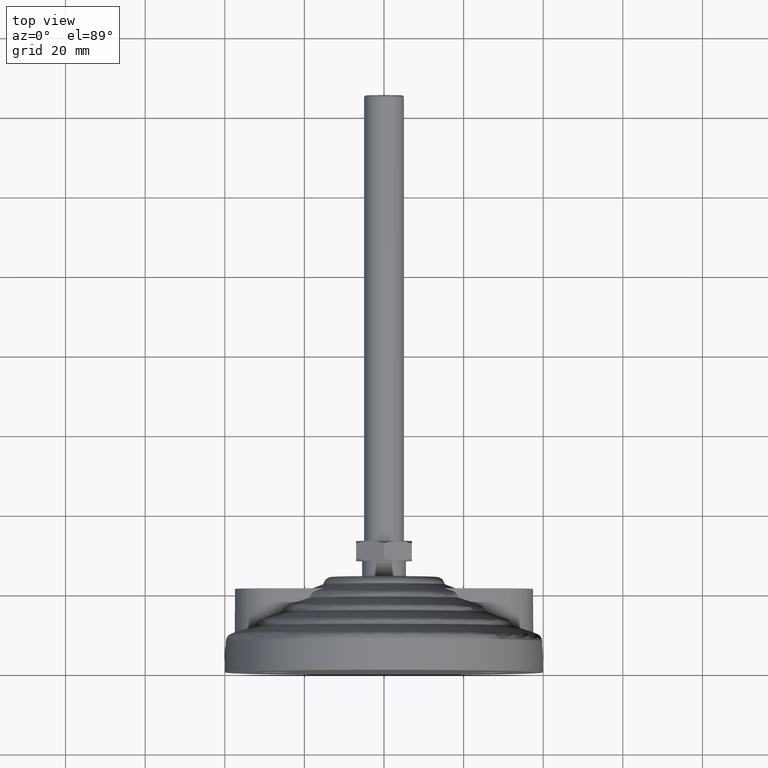
[diagram: clean part render]
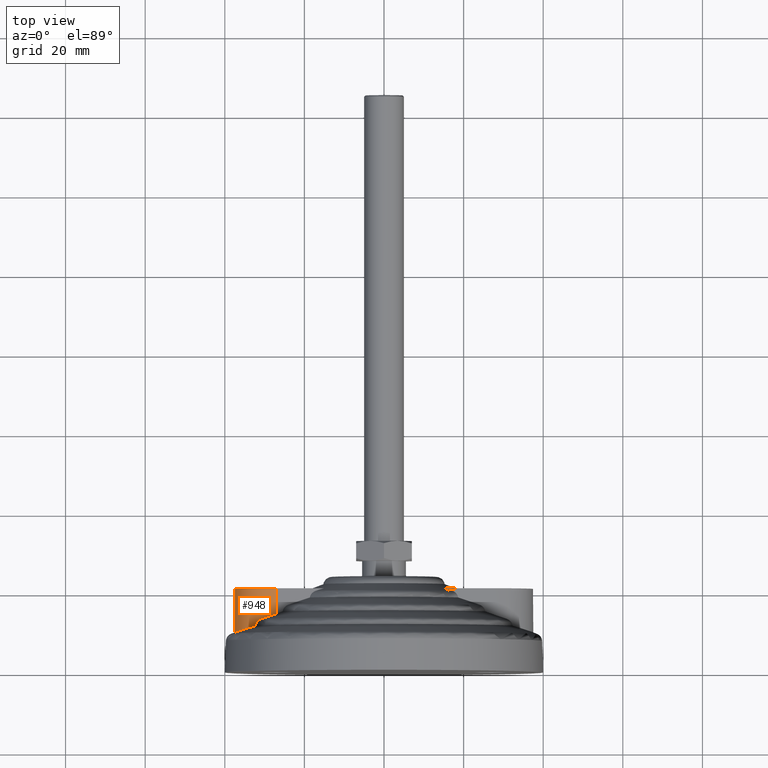
[diagram: same view with one face highlighted and labeled with its STEP entity id]
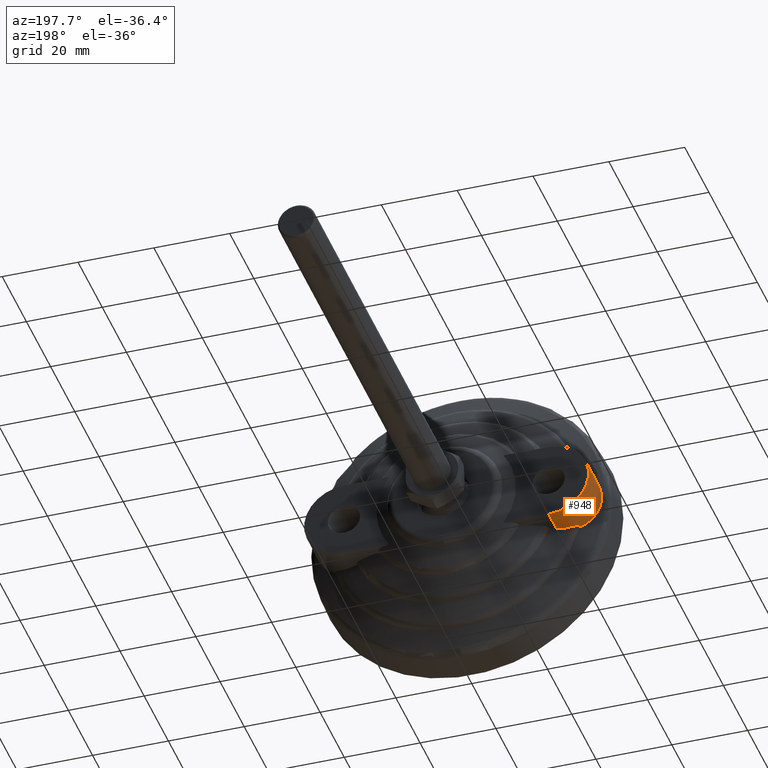
[diagram: same view with one face highlighted and labeled with its STEP entity id]
A machine part, top view. The second image highlights one B-rep face of the part: STEP entity #948.
A second angle (auxiliary view) of the same face is appended — the face is thin or edge-on in the first view.
In plain terms, the highlighted cylindrical surface (partial cylindrical patch) has radius 10.5 mm, axis along (0, 1, 0).
Its self-contained STEP definition (entity closure, byte-faithful):
#129=B_SPLINE_CURVE_WITH_KNOTS('',3,(#1700,#1701,#1702,#1703,#1704,#1705),
 .UNSPECIFIED.,.F.,.F.,(4,2,4),(5.76722868500192,6.05783616383258,6.15239931787654),
 .UNSPECIFIED.);
#130=B_SPLINE_CURVE_WITH_KNOTS('',3,(#1707,#1708,#1709,#1710,#1711,#1712,
#1713,#1714,#1715,#1716),.UNSPECIFIED.,.F.,.F.,(4,2,2,2,4),(-0.277755263623777,
-0.240449563586303,-0.201911387548122,-0.120044959040971,0.),
 .UNSPECIFIED.);
#131=B_SPLINE_CURVE_WITH_KNOTS('',3,(#1718,#1719,#1720,#1721,#1722,#1723,
#1724,#1725,#1726,#1727,#1728,#1729,#1730,#1731,#1732,#1733,#1734,#1735,
#1736,#1737,#1738,#1739),.UNSPECIFIED.,.F.,.F.,(4,2,2,2,2,2,2,2,2,2,4),
(3.43606543224134,3.49650336834101,3.75130165602007,4.00609994369912,4.26089823137818,
4.51569651905723,4.77049480673629,5.02529309441534,5.2800913820944,5.53488966977346,
5.59532760587313),.UNSPECIFIED.);
#132=B_SPLINE_CURVE_WITH_KNOTS('',3,(#1741,#1742,#1743,#1744,#1745,#1746,
#1747,#1748,#1749,#1750),.UNSPECIFIED.,.F.,.F.,(4,2,2,2,4),(-0.258726061847404,
-0.192005591979209,-0.127331546332243,-0.0568854047078998,0.),
 .UNSPECIFIED.);
#133=B_SPLINE_CURVE_WITH_KNOTS('',3,(#1751,#1752,#1753,#1754,#1755,#1756),
 .UNSPECIFIED.,.F.,.F.,(4,2,4),(2.8665167227233,2.96107987676726,3.25168735559793),
 .UNSPECIFIED.);
#147=FACE_OUTER_BOUND('',#203,.T.);
#203=EDGE_LOOP('',(#689,#690,#691,#692,#693,#694,#695,#696));
#263=LINE('',#1625,#286);
#264=LINE('',#1632,#287);
#286=VECTOR('',#1245,10.);
#287=VECTOR('',#1248,10.);
#317=CIRCLE('',#1078,10.5);
#399=VERTEX_POINT('',#1585);
#400=VERTEX_POINT('',#1587);
#405=VERTEX_POINT('',#1621);
#407=VERTEX_POINT('',#1631);
#416=VERTEX_POINT('',#1699);
#417=VERTEX_POINT('',#1706);
#418=VERTEX_POINT('',#1717);
#419=VERTEX_POINT('',#1740);
#506=EDGE_CURVE('',#400,#399,#317,.T.);
#513=EDGE_CURVE('',#405,#399,#263,.T.);
#515=EDGE_CURVE('',#407,#400,#264,.T.);
#526=EDGE_CURVE('',#416,#405,#129,.T.);
#527=EDGE_CURVE('',#417,#416,#130,.T.);
#528=EDGE_CURVE('',#418,#417,#131,.T.);
#529=EDGE_CURVE('',#419,#418,#132,.T.);
#530=EDGE_CURVE('',#407,#419,#133,.T.);
#689=ORIENTED_EDGE('',*,*,#526,.F.);
#690=ORIENTED_EDGE('',*,*,#527,.F.);
#691=ORIENTED_EDGE('',*,*,#528,.F.);
#692=ORIENTED_EDGE('',*,*,#529,.F.);
#693=ORIENTED_EDGE('',*,*,#530,.F.);
#694=ORIENTED_EDGE('',*,*,#515,.T.);
#695=ORIENTED_EDGE('',*,*,#506,.T.);
#696=ORIENTED_EDGE('',*,*,#513,.F.);
#936=CYLINDRICAL_SURFACE('',#1082,10.5);
#948=ADVANCED_FACE('',(#147),#936,.T.);
#1078=AXIS2_PLACEMENT_3D('',#1588,#1240,#1241);
#1082=AXIS2_PLACEMENT_3D('',#1698,#1252,#1253);
#1240=DIRECTION('center_axis',(0.,-1.,0.));
#1241=DIRECTION('ref_axis',(0.,0.,-1.));
#1245=DIRECTION('',(0.,1.,0.));
#1248=DIRECTION('',(0.,1.,0.));
#1252=DIRECTION('center_axis',(0.,1.,0.));
#1253=DIRECTION('ref_axis',(0.,0.,-1.));
#1585=CARTESIAN_POINT('',(-27.,21.,-10.5));
#1587=CARTESIAN_POINT('',(-27.,21.,10.5));
#1588=CARTESIAN_POINT('Origin',(-27.,21.,0.));
#1621=CARTESIAN_POINT('',(-27.,14.6225422536565,-10.5));
#1625=CARTESIAN_POINT('',(-27.,1.,-10.5));
#1631=CARTESIAN_POINT('',(-27.,14.6225422536565,10.5));
#1632=CARTESIAN_POINT('',(-27.,1.,10.5));
#1698=CARTESIAN_POINT('Origin',(-27.,1.,0.));
#1699=CARTESIAN_POINT('',(-30.7243523480942,13.353673555576,-9.81729084764454));
#1700=CARTESIAN_POINT('Ctrl Pts',(-30.7243523480942,13.353673555576,-9.81729084764453));
#1701=CARTESIAN_POINT('Ctrl Pts',(-29.830006323037,13.6428573128391,-10.1565758673228));
#1702=CARTESIAN_POINT('Ctrl Pts',(-28.8835374298768,13.9591533364495,-10.373863285386));
#1703=CARTESIAN_POINT('Ctrl Pts',(-27.6208747110214,14.4006946398294,-10.4862470382709));
#1704=CARTESIAN_POINT('Ctrl Pts',(-27.3100625601747,14.5109163877395,-10.5));
#1705=CARTESIAN_POINT('Ctrl Pts',(-27.,14.6225422536565,-10.5));
#1706=CARTESIAN_POINT('',(-32.3063347882672,11.634402129208,-9.0605083254101));
#1707=CARTESIAN_POINT('Ctrl Pts',(-32.3063347882672,11.634402129208,-9.06050832541008));
#1708=CARTESIAN_POINT('Ctrl Pts',(-32.2945097725938,11.7470214768291,-9.06743370859899));
#1709=CARTESIAN_POINT('Ctrl Pts',(-32.2711448108866,11.8570399226639,-9.08110933825304));
#1710=CARTESIAN_POINT('Ctrl Pts',(-32.2025727881487,12.0737170603725,-9.12057303751808));
#1711=CARTESIAN_POINT('Ctrl Pts',(-32.1570729432958,12.1788603178273,-9.14649888055782));
#1712=CARTESIAN_POINT('Ctrl Pts',(-31.9878000675641,12.4897320142283,-9.24062730694749));
#1713=CARTESIAN_POINT('Ctrl Pts',(-31.834189715029,12.6746567257404,-9.3230214032625));
#1714=CARTESIAN_POINT('Ctrl Pts',(-31.4026645792191,13.058894855084,-9.53669261508742));
#1715=CARTESIAN_POINT('Ctrl Pts',(-31.0830924858773,13.2400784773632,-9.68119681770869));
#1716=CARTESIAN_POINT('Ctrl Pts',(-30.7243523480942,13.353673555576,-9.81729084764453));
#1717=CARTESIAN_POINT('',(-32.3063347882672,11.634402129208,9.0605083254101));
#1718=CARTESIAN_POINT('Ctrl Pts',(-32.3063347882672,11.634402129208,9.06050832541009));
#1719=CARTESIAN_POINT('Ctrl Pts',(-32.4756282120752,11.5807529569084,8.9613607332537));
#1720=CARTESIAN_POINT('Ctrl Pts',(-32.6416513835052,11.5284668447145,8.85775183258476));
#1721=CARTESIAN_POINT('Ctrl Pts',(-33.4889272146619,11.2631137489724,8.29573262740808));
#1722=CARTESIAN_POINT('Ctrl Pts',(-34.1415479553644,11.0639803282255,7.74512395475072));
#1723=CARTESIAN_POINT('Ctrl Pts',(-35.3059647272951,10.7146726535325,6.48071000741379));
#1724=CARTESIAN_POINT('Ctrl Pts',(-35.8178332302516,10.5643788194163,5.76700451409473));
#1725=CARTESIAN_POINT('Ctrl Pts',(-36.6493270133366,10.3226629521174,4.23119495069076));
#1726=CARTESIAN_POINT('Ctrl Pts',(-36.9700150310205,10.2308804167138,3.40717504130202));
#1727=CARTESIAN_POINT('Ctrl Pts',(-37.3954079477496,10.1095211444229,1.71625612304319));
#1728=CARTESIAN_POINT('Ctrl Pts',(-37.5,10.0799597506078,0.849327625596855));
#1729=CARTESIAN_POINT('Ctrl Pts',(-37.5,10.0799597506078,-0.849327625596851));
#1730=CARTESIAN_POINT('Ctrl Pts',(-37.3954079477496,10.1095211444229,-1.71625612304319));
#1731=CARTESIAN_POINT('Ctrl Pts',(-36.9700150310205,10.2308804167138,-3.40717504130202));
#1732=CARTESIAN_POINT('Ctrl Pts',(-36.6493270133366,10.3226629521174,-4.23119495069075));
#1733=CARTESIAN_POINT('Ctrl Pts',(-35.8178332302516,10.5643788194163,-5.76700451409472));
#1734=CARTESIAN_POINT('Ctrl Pts',(-35.3059647272951,10.7146726535325,-6.48071000741379));
#1735=CARTESIAN_POINT('Ctrl Pts',(-34.1415479553644,11.0639803282255,-7.74512395475072));
#1736=CARTESIAN_POINT('Ctrl Pts',(-33.4889272146619,11.2631137489724,-8.29573262740808));
#1737=CARTESIAN_POINT('Ctrl Pts',(-32.6416513835052,11.5284668447145,-8.85775183258476));
#1738=CARTESIAN_POINT('Ctrl Pts',(-32.4756282120752,11.5807529569084,-8.9613607332537));
#1739=CARTESIAN_POINT('Ctrl Pts',(-32.3063347882672,11.634402129208,-9.06050832541009));
#1740=CARTESIAN_POINT('',(-30.7243523480942,13.353673555576,9.81729084764454));
#1741=CARTESIAN_POINT('Ctrl Pts',(-30.7243523480942,13.353673555576,9.81729084764452));
#1742=CARTESIAN_POINT('Ctrl Pts',(-30.9249192667173,13.2901640331995,9.74120245565162));
#1743=CARTESIAN_POINT('Ctrl Pts',(-31.1176632793467,13.2040697130787,9.66091229015537));
#1744=CARTESIAN_POINT('Ctrl Pts',(-31.4696813103391,12.9923466545999,9.50305256582415));
#1745=CARTESIAN_POINT('Ctrl Pts',(-31.631504935965,12.8669447190815,9.42468246153176));
#1746=CARTESIAN_POINT('Ctrl Pts',(-31.9285271454044,12.5622747473225,9.27307113458739));
#1747=CARTESIAN_POINT('Ctrl Pts',(-32.0615319674481,12.3775761644904,9.2001629761949));
#1748=CARTESIAN_POINT('Ctrl Pts',(-32.2347537825474,12.0023477734723,9.10248569274575));
#1749=CARTESIAN_POINT('Ctrl Pts',(-32.2865707035807,11.8226317591034,9.07208326650206));
#1750=CARTESIAN_POINT('Ctrl Pts',(-32.3063347882672,11.634402129208,9.06050832541008));
#1751=CARTESIAN_POINT('Ctrl Pts',(-27.,14.6225422536565,10.5));
#1752=CARTESIAN_POINT('Ctrl Pts',(-27.3100625601747,14.5109163877395,10.5));
#1753=CARTESIAN_POINT('Ctrl Pts',(-27.6208747110214,14.4006946398294,10.4862470382709));
#1754=CARTESIAN_POINT('Ctrl Pts',(-28.8835374298768,13.9591533364495,10.373863285386));
#1755=CARTESIAN_POINT('Ctrl Pts',(-29.830006323037,13.6428573128391,10.1565758673228));
#1756=CARTESIAN_POINT('Ctrl Pts',(-30.7243523480942,13.353673555576,9.81729084764453));